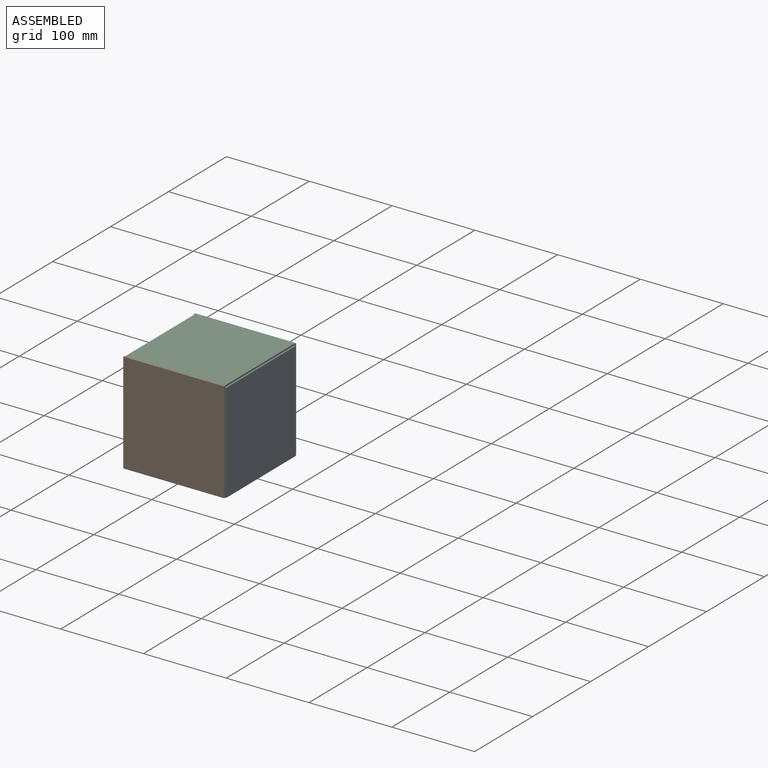
[diagram: assembled view]
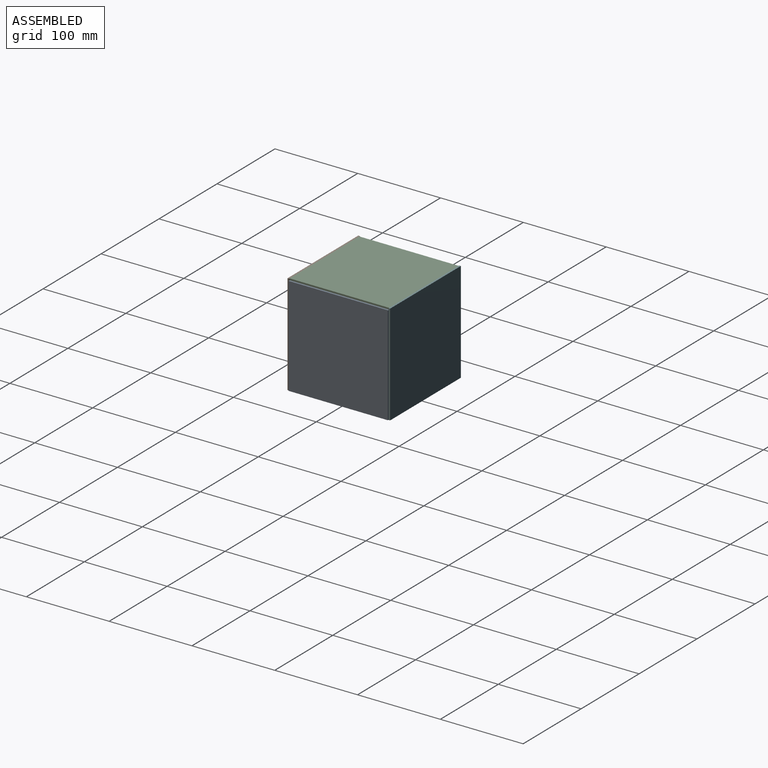
[diagram: assembled view, second angle]
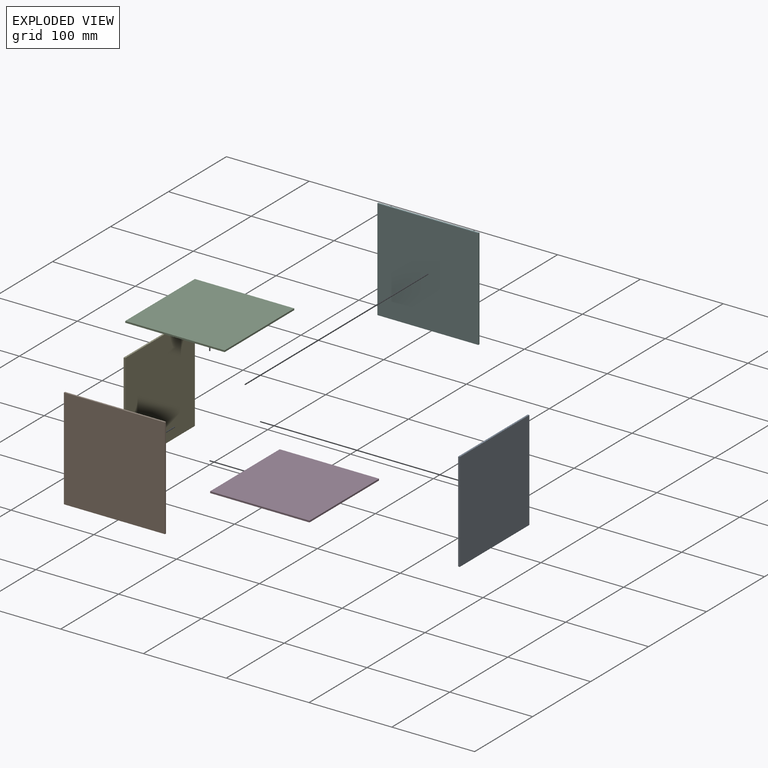
[diagram: exploded view]
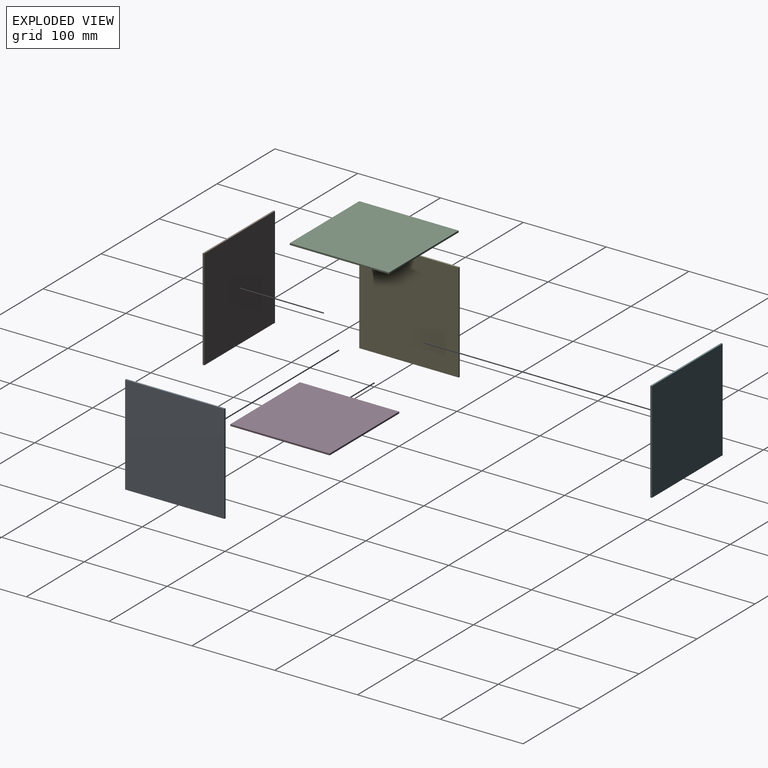
[diagram: exploded view, second angle]
ASSEMBLY  parts=6 mates=5
PART A: 6 faces, bbox 120x120x2 mm
  f0: plane 120x2mm, normal (0,-1,0), area 240mm2, adj f1,f3,f4,f5
  f1: plane 120x2mm, normal (1,0,0), area 240mm2, adj f0,f2,f4,f5
  f2: plane 120x2mm, normal (0,1,0), area 240mm2, adj f1,f3,f4,f5
  f3: plane 120x2mm, normal (-1,0,0), area 240mm2, adj f0,f2,f4,f5
  f4: plane 120x120mm, normal (0,0,1), area 14400mm2, adj f0,f1,f2,f3
  f5: plane 120x120mm, normal (0,0,-1), area 14400mm2, adj f0,f1,f2,f3
PART B: 6 faces, bbox 122x122x2 mm
  f0: plane 122x2mm, normal (0,-1,0), area 244mm2, adj f1,f3,f4,f5
  f1: plane 122x2mm, normal (1,0,0), area 244mm2, adj f0,f2,f4,f5
  f2: plane 122x2mm, normal (0,1,0), area 244mm2, adj f1,f3,f4,f5
  f3: plane 122x2mm, normal (-1,0,0), area 244mm2, adj f0,f2,f4,f5
  f4: plane 122x122mm, normal (0,0,1), area 14884mm2, adj f0,f1,f2,f3
  f5: plane 122x122mm, normal (0,0,-1), area 14884mm2, adj f0,f1,f2,f3
PART C: same geometry as A
PART D: same geometry as A
PART E: same geometry as A
PART F: same geometry as B
PLACE A rot(axis=(0.58,-0.58,-0.58),120deg) t=(62,0,60)mm
PLACE B rot(axis=(-1,0,0),90deg) t=(0,-62,61)mm
PLACE C rot(axis=(0,1,0),180deg) t=(0,0,122)mm
PLACE D at identity fixed
PLACE E rot(axis=(0,1,0),90deg) t=(-62,0,60)mm
PLACE F rot(axis=(0,-0.71,0.71),180deg) t=(0,62,61)mm
MATE slider F.f4 <-> D.f2  axis (0,-1,0) through (0,60,0)mm
MATE slider A.f4 <-> D.f1  axis (-1,0,0) through (60,0,0)mm
MATE slider E.f4 <-> D.f3  axis (1,0,0) through (-60,0,0)mm
MATE slider B.f4 <-> D.f0  axis (0,1,0) through (0,-60,0)mm
MATE slider C.f0 <-> B.f4  axis (0,-1,0) through (0,-60,122)mm
